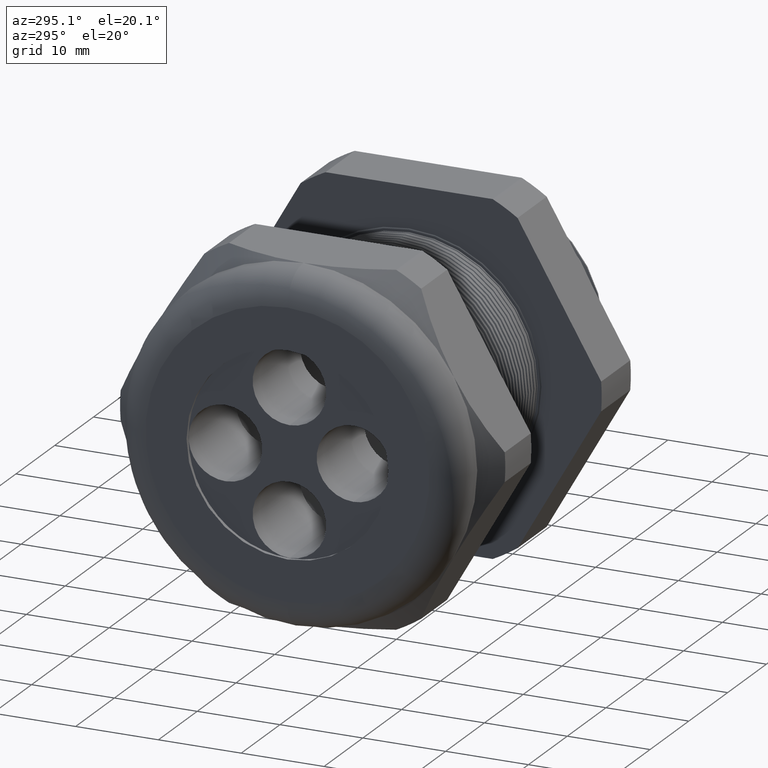
[diagram: clean part render]
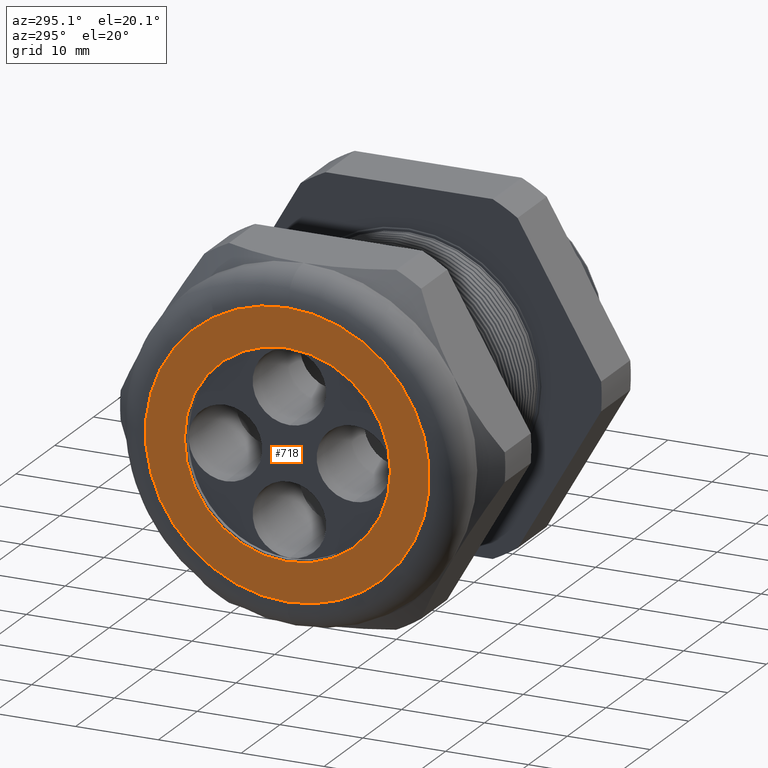
[diagram: same view with one face highlighted and labeled with its STEP entity id]
A machine part, auxiliary view. The second image highlights one B-rep face of the part: STEP entity #718.
In plain terms, the highlighted planar face has unit normal (-1, 0, 0).
Its self-contained STEP definition (entity closure, byte-faithful):
#99 = EDGE_CURVE ( 'NONE', #111, #5311, #1951, .T. ) ;
#101 = EDGE_CURVE ( 'NONE', #105, #114, #1945, .T. ) ;
#105 = VERTEX_POINT ( 'NONE', #2003 ) ;
#111 = VERTEX_POINT ( 'NONE', #1988 ) ;
#114 = VERTEX_POINT ( 'NONE', #1981 ) ;
#663 = EDGE_CURVE ( 'NONE', #114, #105, #3095, .T. ) ;
#718 = ADVANCED_FACE ( 'NONE', ( #3174, #3173 ), #3172, .T. ) ;
#719 = EDGE_LOOP ( 'NONE', ( #720, #721 ) ) ;
#720 = ORIENTED_EDGE ( 'NONE', *, *, #99, .T. ) ;
#721 = ORIENTED_EDGE ( 'NONE', *, *, #722, .T. ) ;
#722 = EDGE_CURVE ( 'NONE', #5311, #111, #3234, .T. ) ;
#723 = EDGE_LOOP ( 'NONE', ( #724, #725 ) ) ;
#724 = ORIENTED_EDGE ( 'NONE', *, *, #663, .T. ) ;
#725 = ORIENTED_EDGE ( 'NONE', *, *, #101, .T. ) ;
#1941 = DIRECTION ( 'NONE',  ( 0.0000000000000000000, 0.0000000000000000000, -1.000000000000000000 ) ) ;
#1942 = DIRECTION ( 'NONE',  ( 1.000000000000000000, 0.0000000000000000000, 0.0000000000000000000 ) ) ;
#1943 = CARTESIAN_POINT ( 'NONE',  ( -1.839999999999999400, 0.0000000000000000000, 0.0000000000000000000 ) ) ;
#1944 = AXIS2_PLACEMENT_3D ( 'NONE', #1943, #1942, #1941 ) ;
#1945 = CIRCLE ( 'NONE', #1944, 0.4899999999999998800 ) ;
#1947 = DIRECTION ( 'NONE',  ( 0.0000000000000000000, 0.0000000000000000000, 1.000000000000000000 ) ) ;
#1948 = DIRECTION ( 'NONE',  ( -1.000000000000000000, 0.0000000000000000000, 0.0000000000000000000 ) ) ;
#1949 = CARTESIAN_POINT ( 'NONE',  ( -1.839999999999999400, 0.0000000000000000000, 0.0000000000000000000 ) ) ;
#1950 = AXIS2_PLACEMENT_3D ( 'NONE', #1949, #1948, #1947 ) ;
#1951 = CIRCLE ( 'NONE', #1950, 0.6749999999999997100 ) ;
#1981 = CARTESIAN_POINT ( 'NONE',  ( -1.839999999999999400, 0.0000000000000000000, -0.4899999999999998800 ) ) ;
#1988 = CARTESIAN_POINT ( 'NONE',  ( -1.839999999999999400, 0.0000000000000000000, 0.6749999999999997100 ) ) ;
#2003 = CARTESIAN_POINT ( 'NONE',  ( -1.839999999999999400, 6.000769315822029800E-017, 0.4899999999999998800 ) ) ;
#3087 = DIRECTION ( 'NONE',  ( 0.0000000000000000000, 0.0000000000000000000, -1.000000000000000000 ) ) ;
#3088 = DIRECTION ( 'NONE',  ( 1.000000000000000000, 0.0000000000000000000, 0.0000000000000000000 ) ) ;
#3089 = CARTESIAN_POINT ( 'NONE',  ( -1.839999999999999400, 0.0000000000000000000, 0.0000000000000000000 ) ) ;
#3090 = AXIS2_PLACEMENT_3D ( 'NONE', #3089, #3088, #3087 ) ;
#3095 = CIRCLE ( 'NONE', #3090, 0.4899999999999998800 ) ;
#3168 = DIRECTION ( 'NONE',  ( 0.0000000000000000000, 0.0000000000000000000, 1.000000000000000000 ) ) ;
#3169 = DIRECTION ( 'NONE',  ( -1.000000000000000000, 0.0000000000000000000, 0.0000000000000000000 ) ) ;
#3170 = CARTESIAN_POINT ( 'NONE',  ( -1.839999999999999400, 0.8249999999999998400, 0.0000000000000000000 ) ) ;
#3171 = AXIS2_PLACEMENT_3D ( 'NONE', #3170, #3169, #3168 ) ;
#3172 = PLANE ( 'NONE',  #3171 ) ;
#3173 = FACE_BOUND ( 'NONE', #723, .T. ) ;
#3174 = FACE_OUTER_BOUND ( 'NONE', #719, .T. ) ;
#3230 = DIRECTION ( 'NONE',  ( 0.0000000000000000000, 0.0000000000000000000, 1.000000000000000000 ) ) ;
#3231 = DIRECTION ( 'NONE',  ( -1.000000000000000000, 0.0000000000000000000, 0.0000000000000000000 ) ) ;
#3232 = CARTESIAN_POINT ( 'NONE',  ( -1.839999999999999400, 0.0000000000000000000, 0.0000000000000000000 ) ) ;
#3233 = AXIS2_PLACEMENT_3D ( 'NONE', #3232, #3231, #3230 ) ;
#3234 = CIRCLE ( 'NONE', #3233, 0.6749999999999997100 ) ;
#5311 = VERTEX_POINT ( 'NONE', #6301 ) ;
#6301 = CARTESIAN_POINT ( 'NONE',  ( -1.839999999999999400, 9.184850993605146000E-017, -0.6749999999999997100 ) ) ;